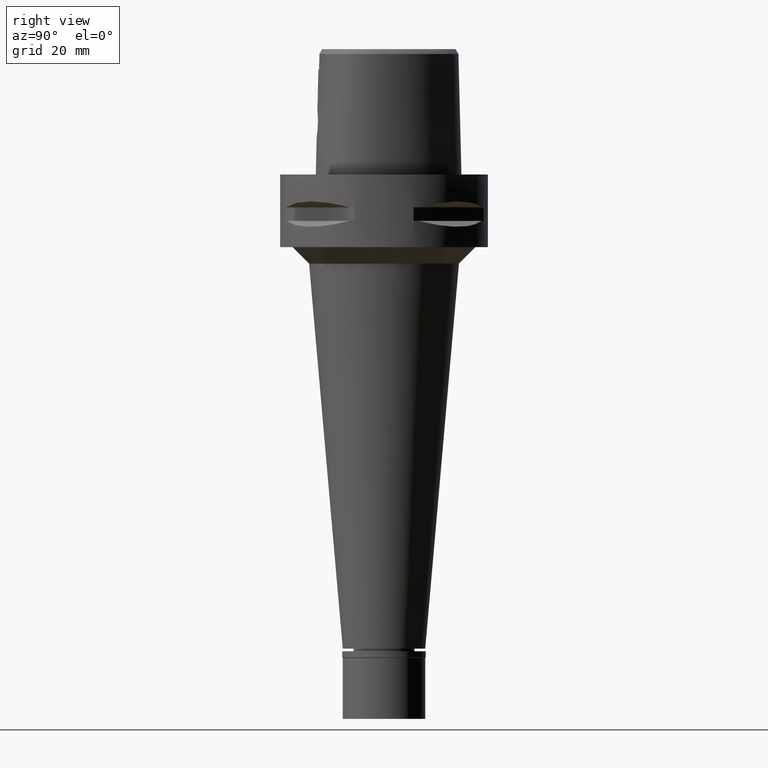
[diagram: clean part render]
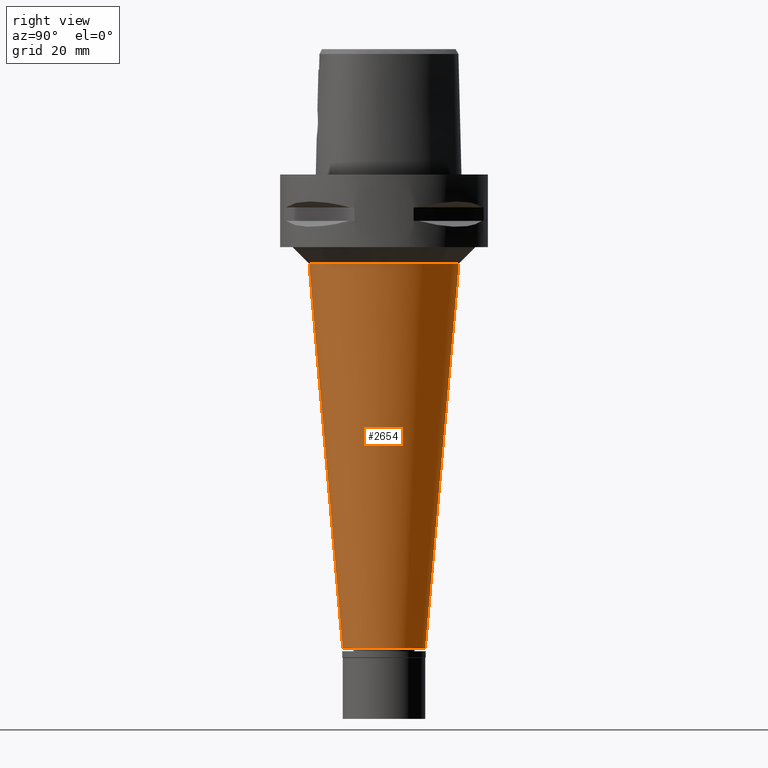
[diagram: same view with one face highlighted and labeled with its STEP entity id]
A machine part, right view. The second image highlights one B-rep face of the part: STEP entity #2654.
In plain terms, the highlighted conical surface has half-angle 5 deg.
Its self-contained STEP definition (entity closure, byte-faithful):
#69 = FACE_OUTER_BOUND ( 'NONE', #3108, .T. ) ;
#184 = CARTESIAN_POINT ( 'NONE',  ( 0.0000000000000000000, -1.045236043071999969E-14, -143.6999999999999886 ) ) ;
#216 = VERTEX_POINT ( 'NONE', #2844 ) ;
#447 = DIRECTION ( 'NONE',  ( 0.0000000000000000000, 0.0000000000000000000, 1.000000000000000000 ) ) ;
#622 = DIRECTION ( 'NONE',  ( 0.0000000000000000000, 1.000000000000000000, 0.0000000000000000000 ) ) ;
#629 = CARTESIAN_POINT ( 'NONE',  ( 0.0000000000000000000, 22.70992703347999964, -27.00000000000000000 ) ) ;
#859 = CONICAL_SURFACE ( 'NONE', #1201, 17.60496351673999982, 0.08726646259969973729 ) ;
#890 = VERTEX_POINT ( 'NONE', #5002 ) ;
#1201 = AXIS2_PLACEMENT_3D ( 'NONE', #1374, #4922, #622 ) ;
#1281 = DIRECTION ( 'NONE',  ( 0.0000000000000000000, -1.000000000000000000, 0.0000000000000000000 ) ) ;
#1311 = DIRECTION ( 'NONE',  ( 0.0000000000000000000, 0.0000000000000000000, 1.000000000000000000 ) ) ;
#1374 = CARTESIAN_POINT ( 'NONE',  ( 0.0000000000000000000, -1.045236043071999969E-14, -85.34999999999999432 ) ) ;
#1398 = VERTEX_POINT ( 'NONE', #4015 ) ;
#1548 = AXIS2_PLACEMENT_3D ( 'NONE', #3964, #447, #1281 ) ;
#1560 = CARTESIAN_POINT ( 'NONE',  ( 0.0000000000000000000, -22.70992703347999964, -27.00000000000000000 ) ) ;
#1615 = AXIS2_PLACEMENT_3D ( 'NONE', #184, #1311, #3688 ) ;
#1791 = CIRCLE ( 'NONE', #1548, 22.70992703347999964 ) ;
#1839 = LINE ( 'NONE', #1893, #1868 ) ;
#1868 = VECTOR ( 'NONE', #5005, 1000.000000000000000 ) ;
#1893 = CARTESIAN_POINT ( 'NONE',  ( 0.0000000000000000000, -22.70992703347999964, -27.00000000000000000 ) ) ;
#2343 = CIRCLE ( 'NONE', #1615, 12.50000000000000000 ) ;
#2348 = ORIENTED_EDGE ( 'NONE', *, *, #4030, .T. ) ;
#2654 = ADVANCED_FACE ( 'NONE', ( #69 ), #859, .T. ) ;
#2731 = ORIENTED_EDGE ( 'NONE', *, *, #3371, .T. ) ;
#2844 = CARTESIAN_POINT ( 'NONE',  ( 0.0000000000000000000, -12.50000000000000000, -143.6999999999999886 ) ) ;
#2870 = ORIENTED_EDGE ( 'NONE', *, *, #4664, .F. ) ;
#3108 = EDGE_LOOP ( 'NONE', ( #2870, #2348, #2731, #4358 ) ) ;
#3371 = EDGE_CURVE ( 'NONE', #216, #890, #2343, .T. ) ;
#3688 = DIRECTION ( 'NONE',  ( 0.0000000000000000000, -1.000000000000000000, 0.0000000000000000000 ) ) ;
#3789 = DIRECTION ( 'NONE',  ( 0.0000000000000000000, -0.08715574274767391716, -0.9961946980917442129 ) ) ;
#3964 = CARTESIAN_POINT ( 'NONE',  ( 0.0000000000000000000, -1.045236043071999969E-14, -27.00000000000000000 ) ) ;
#4015 = CARTESIAN_POINT ( 'NONE',  ( 0.0000000000000000000, 22.70992703347999964, -27.00000000000000000 ) ) ;
#4030 = EDGE_CURVE ( 'NONE', #4246, #216, #1839, .T. ) ;
#4113 = EDGE_CURVE ( 'NONE', #1398, #890, #4581, .T. ) ;
#4246 = VERTEX_POINT ( 'NONE', #1560 ) ;
#4358 = ORIENTED_EDGE ( 'NONE', *, *, #4113, .F. ) ;
#4581 = LINE ( 'NONE', #629, #4647 ) ;
#4647 = VECTOR ( 'NONE', #3789, 1000.000000000000000 ) ;
#4664 = EDGE_CURVE ( 'NONE', #4246, #1398, #1791, .T. ) ;
#4922 = DIRECTION ( 'NONE',  ( 0.0000000000000000000, 0.0000000000000000000, 1.000000000000000000 ) ) ;
#5002 = CARTESIAN_POINT ( 'NONE',  ( 0.0000000000000000000, 12.50000000000000000, -143.6999999999999886 ) ) ;
#5005 = DIRECTION ( 'NONE',  ( 0.0000000000000000000, 0.08715574274767391716, -0.9961946980917442129 ) ) ;